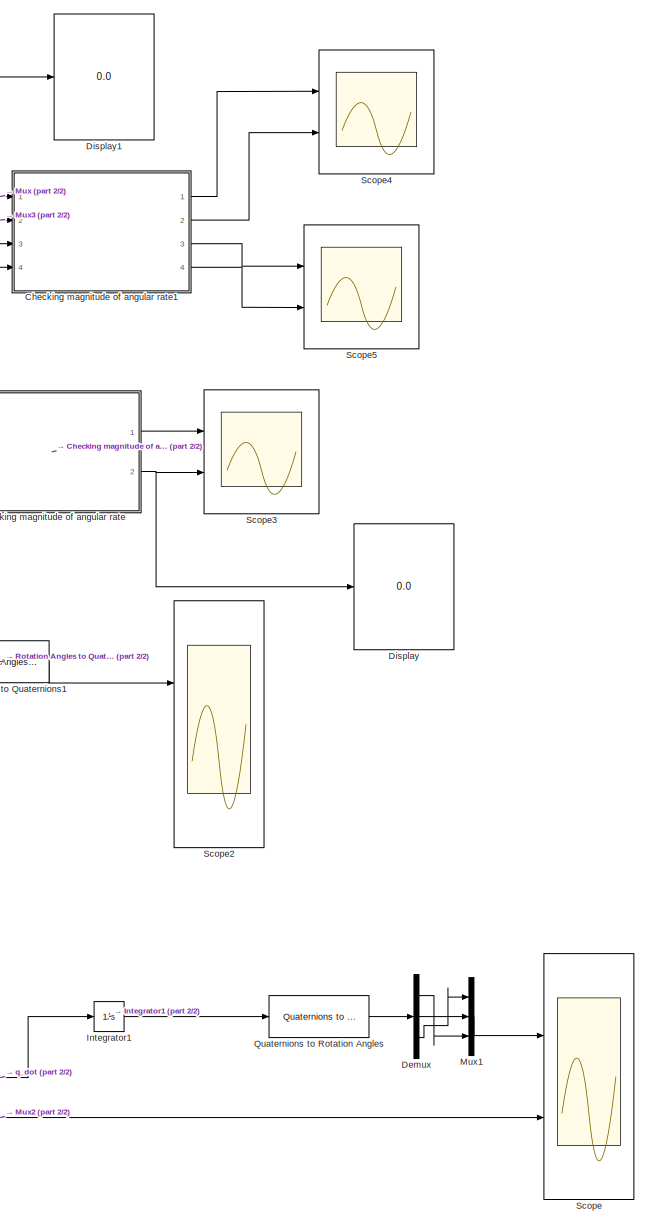
[diagram: root canvas - part 1/2, right side, full height]
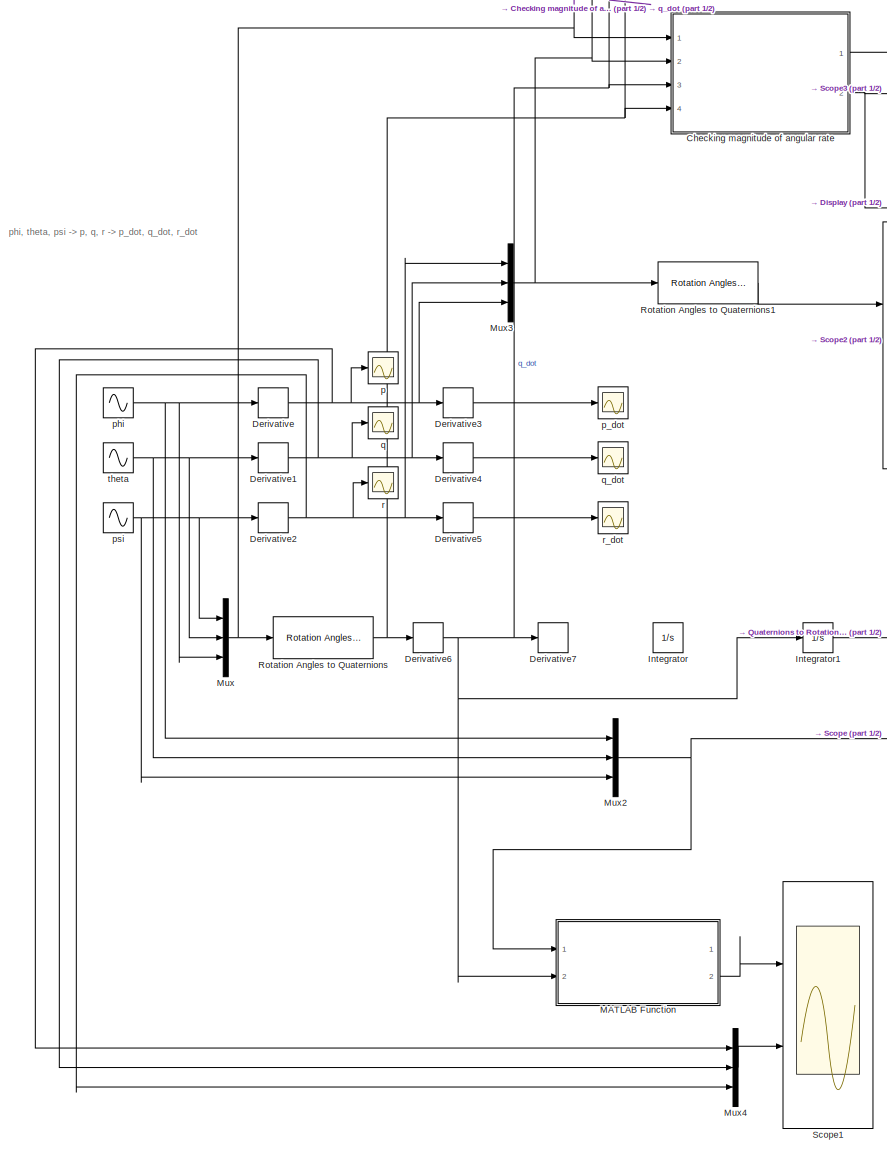
[diagram: root canvas - part 2/2, left side, full height]
MODEL slx_3232a4507901
KIND model
CONFIG AbsTol = auto
CONFIG FixedStep = 0.01
CONFIG MaxStep = auto
CONFIG MinStep = auto
CONFIG RelTol = 1e-3
CONFIG SampleTimeConstraint = Unconstrained
CONFIG Solver = ode4
CONFIG SolverMode = Auto
CONFIG SolverName = ode4
CONFIG StartTime = 0.0
CONFIG StopTime = 10.0
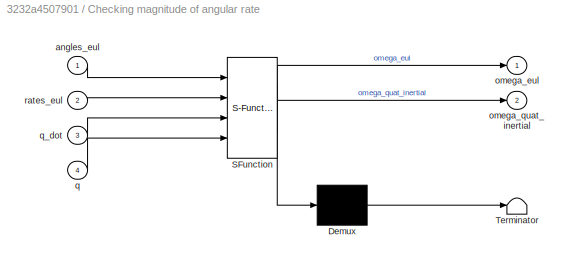
BLOCK [SubSystem] Checking magnitude of angular rate
  ErrorFcn = Stateflow.Translate.translate
  PermitHierarchicalResolution = ExplicitOnly
  Ports = [4, 2]
  RequestExecContextInheritance = off
  SFBlockType = MATLAB Function
  TreatAsAtomicUnit = on
  Variant = off
BLOCK [Demux] Checking magnitude of angular rate/ Demux 
  Outputs = 1
  Ports = [1, 1]
BLOCK [S-Function] Checking magnitude of angular rate/ SFunction 
  EnableBusSupport = on
  FunctionName = sf_sfun
  PortCounts = [4 3]
  Ports = [4, 3]
  SFunctionDeploymentMode = off
  Tag = Stateflow S-Function quaternion_differentiation_test 1
BLOCK [Terminator] Checking magnitude of angular rate/ Terminator 
BLOCK [Inport] Checking magnitude of angular rate/angles_eul
  IconDisplay = Port number
BLOCK [Outport] Checking magnitude of angular rate/omega_eul
  IconDisplay = Port number
BLOCK [Outport] Checking magnitude of angular rate/omega_quat_inertial
  IconDisplay = Port number
  Port = 2
BLOCK [Inport] Checking magnitude of angular rate/q
  IconDisplay = Port number
  Port = 4
BLOCK [Inport] Checking magnitude of angular rate/q_dot
  IconDisplay = Port number
  Port = 3
BLOCK [Inport] Checking magnitude of angular rate/rates_eul
  IconDisplay = Port number
  Port = 2
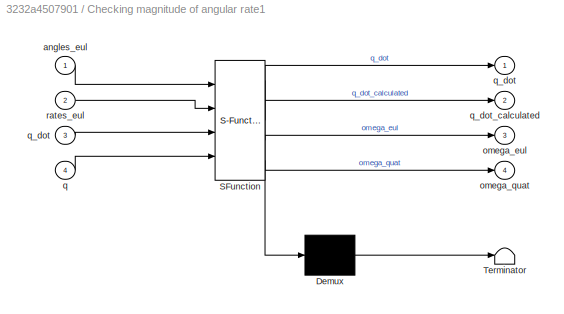
BLOCK [SubSystem] Checking magnitude of angular rate1
  ErrorFcn = Stateflow.Translate.translate
  PermitHierarchicalResolution = ExplicitOnly
  Ports = [4, 4]
  RequestExecContextInheritance = off
  SFBlockType = MATLAB Function
  TreatAsAtomicUnit = on
  Variant = off
BLOCK [Demux] Checking magnitude of angular rate1/ Demux 
  Outputs = 1
  Ports = [1, 1]
BLOCK [S-Function] Checking magnitude of angular rate1/ SFunction 
  EnableBusSupport = on
  FunctionName = sf_sfun
  PortCounts = [4 5]
  Ports = [4, 5]
  SFunctionDeploymentMode = off
  Tag = Stateflow S-Function quaternion_differentiation_test 3
BLOCK [Terminator] Checking magnitude of angular rate1/ Terminator 
BLOCK [Inport] Checking magnitude of angular rate1/angles_eul
  IconDisplay = Port number
BLOCK [Outport] Checking magnitude of angular rate1/omega_eul
  IconDisplay = Port number
  Port = 3
BLOCK [Outport] Checking magnitude of angular rate1/omega_quat
  IconDisplay = Port number
  Port = 4
BLOCK [Inport] Checking magnitude of angular rate1/q
  IconDisplay = Port number
  Port = 4
BLOCK [Outport] Checking magnitude of angular rate1/q_dot
  IconDisplay = Port number
BLOCK [Inport] Checking magnitude of angular rate1/q_dot 
  IconDisplay = Port number
  Port = 3
BLOCK [Outport] Checking magnitude of angular rate1/q_dot_calculated
  IconDisplay = Port number
  Port = 2
BLOCK [Inport] Checking magnitude of angular rate1/rates_eul
  IconDisplay = Port number
  Port = 2
BLOCK [Demux] Demux
  DisplayOption = bar
  Outputs = 3
  Ports = [1, 3]
BLOCK [Derivative] Derivative
BLOCK [Derivative] Derivative1
BLOCK [Derivative] Derivative2
BLOCK [Derivative] Derivative3
BLOCK [Derivative] Derivative4
BLOCK [Derivative] Derivative5
BLOCK [Derivative] Derivative6
BLOCK [Derivative] Derivative7
BLOCK [Display] Display
  Decimation = 1
  Ports = [1]
BLOCK [Display] Display1
  Decimation = 1
  Ports = [1]
BLOCK [Integrator] Integrator
  Ports = [1, 1]
BLOCK [Integrator] Integrator1
  Ports = [1, 1]
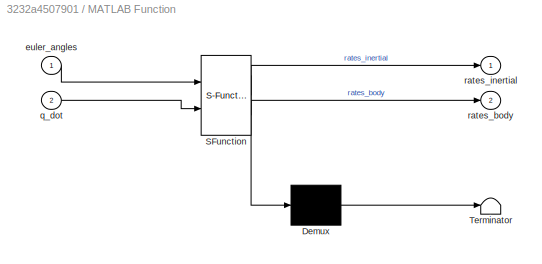
BLOCK [SubSystem] MATLAB Function
  ErrorFcn = Stateflow.Translate.translate
  PermitHierarchicalResolution = ExplicitOnly
  Ports = [2, 2]
  RequestExecContextInheritance = off
  SFBlockType = MATLAB Function
  TreatAsAtomicUnit = on
  Variant = off
BLOCK [Demux] MATLAB Function/ Demux 
  Outputs = 1
  Ports = [1, 1]
BLOCK [S-Function] MATLAB Function/ SFunction 
  EnableBusSupport = on
  FunctionName = sf_sfun
  PortCounts = [2 3]
  Ports = [2, 3]
  SFunctionDeploymentMode = off
  Tag = Stateflow S-Function quaternion_differentiation_test 2
BLOCK [Terminator] MATLAB Function/ Terminator 
BLOCK [Inport] MATLAB Function/euler_angles
  IconDisplay = Port number
BLOCK [Inport] MATLAB Function/q_dot
  IconDisplay = Port number
  Port = 2
BLOCK [Outport] MATLAB Function/rates_body
  IconDisplay = Port number
  Port = 2
BLOCK [Outport] MATLAB Function/rates_inertial
  IconDisplay = Port number
BLOCK [Mux] Mux
  DisplayOption = bar
  Inputs = 3
  Ports = [3, 1]
BLOCK [Mux] Mux1
  DisplayOption = bar
  Inputs = 3
  Ports = [3, 1]
BLOCK [Mux] Mux2
  DisplayOption = bar
  Inputs = 3
  Ports = [3, 1]
BLOCK [Mux] Mux3
  DisplayOption = bar
  Inputs = 3
  Ports = [3, 1]
BLOCK [Mux] Mux4
  DisplayOption = bar
  Inputs = 3
  Ports = [3, 1]
BLOCK [Reference] Quaternions to Rotation Angles  REF=aerolibtransform2/Quaternions to Rotation Angles
  AttributesFormatString = Rotation Order: %<rotationOrder>
  Ports = [1, 1]
  SourceBlock = aerolibtransform2/Quaternions to Rotation Angles
  SourceType = Quat2Ang
BLOCK [Reference] Rotation Angles to Quaternions  REF=aerolibtransform2/Rotation Angles to Quaternions
  AttributesFormatString = Rotation Order: %<rotationOrder>
  Ports = [1, 1]
  SourceBlock = aerolibtransform2/Rotation Angles to Quaternions
  SourceType = Ang2Quat
BLOCK [Reference] Rotation Angles to Quaternions1  REF=aerolibtransform2/Rotation Angles to Quaternions
  AttributesFormatString = Rotation Order: %<rotationOrder>
  Ports = [1, 1]
  SourceBlock = aerolibtransform2/Rotation Angles to Quaternions
  SourceType = Ang2Quat
BLOCK [Scope] Scope
  NumInputPorts = 2
  Ports = [2]
  ScopeSpecificationString = Simulink.scopes.TimeScopeBlockCfg('CurrentConfiguration', extmgr.ConfigurationSet(extmgr.Configuration('Core','General UI',true),extmgr.Configuration('Core','Source UI',true),extmgr.Configuration('Sources','WiredSimulink',true,'DataLoggingVariableName','ScopeData6'),extmgr.Configuration('Visuals','Time Domain',true,'SerializedDisplays',{struct('MinYLimReal','-1.21722','MaxYLimReal','3.17605','YLab...<+2062ch>
BLOCK [Scope] Scope1
  NumInputPorts = 2
  Ports = [2]
  ScopeSpecificationString = Simulink.scopes.TimeScopeBlockCfg('CurrentConfiguration', extmgr.ConfigurationSet(extmgr.Configuration('Core','General UI',true),extmgr.Configuration('Core','Source UI',true),extmgr.Configuration('Sources','WiredSimulink',true,'DataLoggingVariableName','ScopeData7'),extmgr.Configuration('Visuals','Time Domain',true,'SerializedDisplays',{struct('MinYLimReal','-1.603','MaxYLimReal','1.60297','YLabel...<+2149ch>
BLOCK [Scope] Scope2
  NumInputPorts = 2
  Ports = [2]
  ScopeSpecificationString = Simulink.scopes.TimeScopeBlockCfg('CurrentConfiguration', extmgr.ConfigurationSet(extmgr.Configuration('Core','General UI',true),extmgr.Configuration('Core','Source UI',true),extmgr.Configuration('Sources','WiredSimulink',true,'DataLoggingVariableName','ScopeData8'),extmgr.Configuration('Visuals','Time Domain',true,'SerializedDisplays',{struct('MinYLimReal','-0.76731','MaxYLimReal','1.19637','YLab...<+2175ch>
BLOCK [Scope] Scope3
  NumInputPorts = 2
  Ports = [2]
  ScopeSpecificationString = Simulink.scopes.TimeScopeBlockCfg('CurrentConfiguration', extmgr.ConfigurationSet(extmgr.Configuration('Core','General UI',true),extmgr.Configuration('Core','Source UI',true),extmgr.Configuration('Sources','WiredSimulink',true,'DataLoggingVariableName','ScopeData9'),extmgr.Configuration('Visuals','Time Domain',true,'SerializedDisplays',{struct('MinYLimReal','-1.24999','MaxYLimReal','1.24999','YLab...<+2341ch>
BLOCK [Scope] Scope4
  NumInputPorts = 2
  Ports = [2]
  ScopeSpecificationString = Simulink.scopes.TimeScopeBlockCfg('CurrentConfiguration', extmgr.ConfigurationSet(extmgr.Configuration('Core','General UI',true),extmgr.Configuration('Core','Source UI',true),extmgr.Configuration('Sources','WiredSimulink',true,'DataLoggingVariableName','ScopeData10'),extmgr.Configuration('Visuals','Time Domain',true,'SerializedDisplays',{struct('MinYLimReal','-0.72226','MaxYLimReal','0.72226','YLa...<+2470ch>
BLOCK [Scope] Scope5
  NumInputPorts = 2
  Ports = [2]
  ScopeSpecificationString = Simulink.scopes.TimeScopeBlockCfg('CurrentConfiguration', extmgr.ConfigurationSet(extmgr.Configuration('Core','General UI',true),extmgr.Configuration('Core','Source UI',true),extmgr.Configuration('Sources','WiredSimulink',true,'DataLoggingVariableName','ScopeData11'),extmgr.Configuration('Visuals','Time Domain',true,'SerializedDisplays',{struct('MinYLimReal','-1.24999','MaxYLimReal','1.24999','YLa...<+2415ch>
BLOCK [Scope] p
  Ports = [1]
  ScopeSpecificationString = Simulink.scopes.TimeScopeBlockCfg('CurrentConfiguration', extmgr.ConfigurationSet(extmgr.Configuration('Core','General UI',true),extmgr.Configuration('Core','Source UI',true),extmgr.Configuration('Sources','WiredSimulink',true,'DataLoggingVariableName','ScopeData3'),extmgr.Configuration('Visuals','Time Domain',true,'SerializedDisplays',{struct('MinYLimReal','-1.24999','MaxYLimReal','1.24999','YLab...<+1369ch>
BLOCK [Scope] p_dot
  Ports = [1]
  ScopeSpecificationString = Simulink.scopes.TimeScopeBlockCfg('CurrentConfiguration', extmgr.ConfigurationSet(extmgr.Configuration('Core','General UI',true),extmgr.Configuration('Core','Source UI',true),extmgr.Configuration('Sources','WiredSimulink',true),extmgr.Configuration('Visuals','Time Domain',true,'SerializedDisplays',{struct('MinYLimReal','-13.62478','MaxYLimReal','112.62312','YLabelReal','','MinYLimMag','0.00000','M...<+1341ch>
BLOCK [Sin] phi
  Ports = [0, 1]
  SampleTime = 0
BLOCK [Sin] psi
  Ports = [0, 1]
  SampleTime = 0
BLOCK [Scope] q
  Ports = [1]
  ScopeSpecificationString = C++SS(StrPVP('SaveName','ScopeData'),StrPVP('SaveName','ScopeData1'),StrPVP('SaveName','ScopeData4'))
BLOCK [Scope] q_dot
  Ports = [1]
  ScopeSpecificationString = Simulink.scopes.TimeScopeBlockCfg('CurrentConfiguration', extmgr.ConfigurationSet(extmgr.Configuration('Core','General UI',true),extmgr.Configuration('Core','Source UI',true),extmgr.Configuration('Sources','WiredSimulink',true,'DataLoggingVariableName','ScopeData1'),extmgr.Configuration('Visuals','Time Domain',true,'SerializedDisplays',{struct('MinYLimReal','-13.62478','MaxYLimReal','112.62312','Y...<+1380ch>
BLOCK [Scope] r
  Ports = [1]
  ScopeSpecificationString = Simulink.scopes.TimeScopeBlockCfg('CurrentConfiguration', extmgr.ConfigurationSet(extmgr.Configuration('Core','General UI',true),extmgr.Configuration('Core','Source UI',true),extmgr.Configuration('Sources','WiredSimulink',true,'DataLoggingVariableName','ScopeData5'),extmgr.Configuration('Visuals','Time Domain',true,'SerializedDisplays',{struct('MinYLimReal','-1.24999','MaxYLimReal','1.24999','YLab...<+1370ch>
BLOCK [Scope] r_dot
  Ports = [1]
  ScopeSpecificationString = C++SS(StrPVP('SaveName','ScopeData'),StrPVP('SaveName','ScopeData1'),StrPVP('SaveName','ScopeData2'))
BLOCK [Sin] theta
  Ports = [0, 1]
  SampleTime = 0
ANNOTATION (root): phi, theta, psi -> p, q, r -> p_dot, q_dot, r_dot
LINE Checking magnitude of angular rate1:1 -> Scope4:1
LINE Checking magnitude of angular rate1:2 -> Scope4:2
LINE Checking magnitude of angular rate1:3 -> Scope5:1
LINE Checking magnitude of angular rate1:4 -> Scope5:2
LINE Checking magnitude of angular rate:1 -> Scope3:1
NET Checking magnitude of angular rate:2 -> Display:1, Scope3:2
LINE Demux:1 -> Mux1:3
LINE Demux:2 -> Mux1:2
LINE Demux:3 -> Mux1:1
NET Derivative1:1 -> Derivative4:1, Mux3:2, Mux4:2, q:1
NET Derivative2:1 -> Derivative5:1, Mux3:1, Mux4:3, r:1
LINE Derivative3:1 -> p_dot:1
LINE Derivative4:1 -> q_dot:1
LINE Derivative5:1 -> r_dot:1
NET Derivative6:1 -> Checking magnitude of angular rate1:3, Checking magnitude of angular rate:3, Derivative7:1, Display1:1, Integrator1:1, MATLAB Function:2
NET Derivative:1 -> Derivative3:1, Mux3:3, Mux4:1, p:1
LINE Integrator1:1 -> Quaternions to Rotation Angles:1
LINE MATLAB Function:2 -> Scope1:1
LINE Mux1:1 -> Scope:1
NET Mux2:1 -> MATLAB Function:1, Scope:2
NET Mux3:1 -> Checking magnitude of angular rate1:2, Checking magnitude of angular rate:2, Rotation Angles to Quaternions1:1
LINE Mux4:1 -> Scope1:2
NET Mux:1 -> Checking magnitude of angular rate1:1, Checking magnitude of angular rate:1, Rotation Angles to Quaternions:1
LINE Quaternions to Rotation Angles:1 -> Demux:1
LINE Rotation Angles to Quaternions1:1 -> Scope2:1
NET Rotation Angles to Quaternions:1 -> Checking magnitude of angular rate1:4, Checking magnitude of angular rate:4, Derivative6:1
NET phi:1 -> Derivative:1, Mux2:1, Mux:3
NET psi:1 -> Derivative2:1, Mux2:3, Mux:1
NET theta:1 -> Derivative1:1, Mux2:2, Mux:2
note: NET lines group one-source signal fan-out (src -> all destinations, sorted); 1:1 wires keep LINE
CHART Checking magnitude of angular rate states=1 transitions=1
  STATE_LABEL 'eML_blk_kernel()'
  STATE_LABEL 'SCRIPT:\nfunction [omega_eul,omega_quat_inertial]= fcn(angles_eul,rates_eul,q_dot,q)\n% Checking angular rate\n% https://math.stackexchange.com/questions/1792826/estimate-angular-velocity-and-acceleration-from-a-sequence-of-rotations\n\n% Angular rate magnitude using Euler rates\n% omega_eul = sqrt(rates_eul(1)^2 + rates_eul(2)^2 + rates_eul(3)^2);\nomega_eul = rates_eul;\n\n% From website: omega = 2*q_dot...<+791ch>'
CHART MATLAB Function states=1 transitions=1
  STATE_LABEL 'eML_blk_kernel()'
  STATE_LABEL 'SCRIPT:\nfunction [rates_inertial,rates_body]= fcn(euler_angles,q_dot)\n% From NASA transformation equations:\n\nphi = euler_angles(1);\ntheta = euler_angles(2);\npsi = euler_angles(3);\n\ntheta1 = psi;\ntheta2 = theta;\ntheta3 = phi;\n\nq0 = +sin(theta1/2)*sin(theta2/2)*sin(theta3/2)+cos(theta1/2)*cos(theta2/2)*cos(theta3/2);\nq1 = -sin(theta1/2)*sin(theta2/2)*cos(theta3/2)+sin(theta3/2)*cos(theta1/2)*cos(the...<+930ch>'
CHART Checking magnitude of angular rate1 states=1 transitions=1
  STATE_LABEL 'eML_blk_kernel()'
  STATE_LABEL "SCRIPT:\nfunction [q_dot,q_dot_calculated,omega_eul,omega_quat]= fcn(angles_eul,rates_eul,q_dot,q)\n\n% http://stackoverflow.com/questions/23503151/how-to-update-quaternion-based-on-3d-gyro-data\n\n% From website: q_dot = 0.5*q*w\n% rate of change quaternion  = q_dot\n% quaternion = q\n% gyro quaternion = w = [0,gyrox,gyroy,gyroz]\n\nq_dot_calculated = 0.5*quatmultiply(q',[0;rates_eul(1);rates_eul(2);rates_...<+287ch>"
